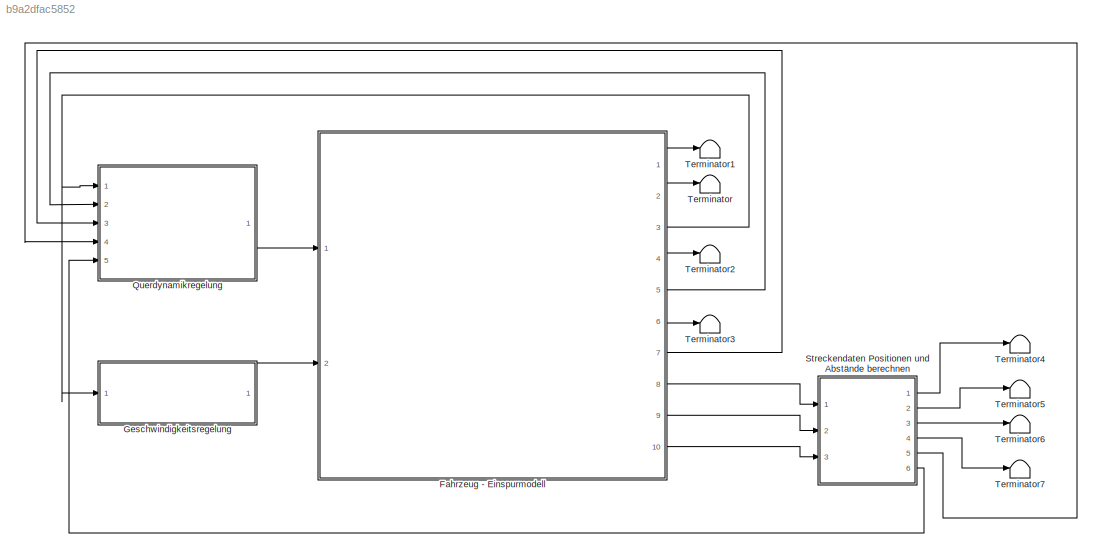
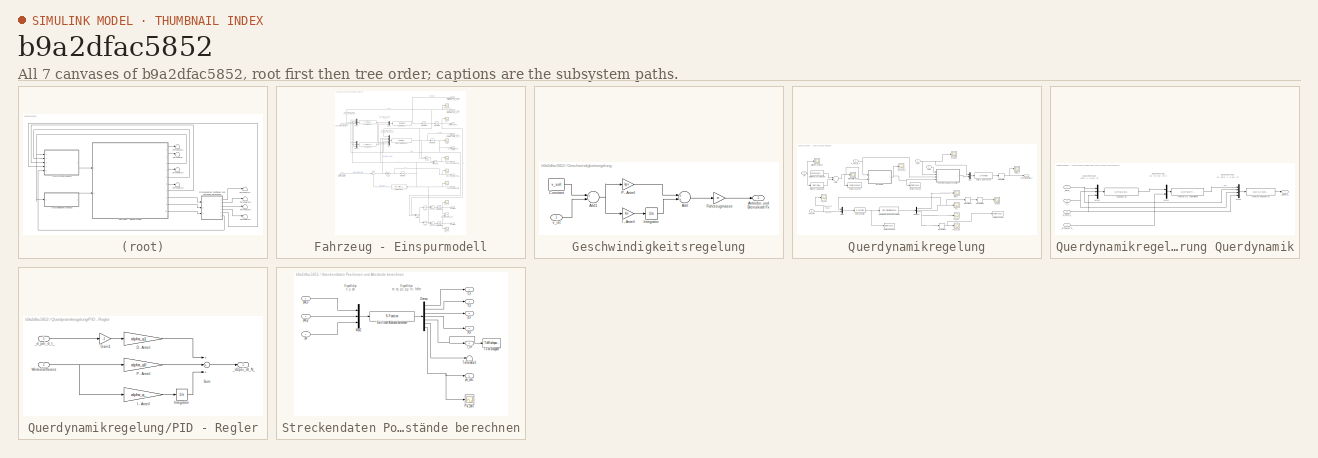
[diagram: thumbnail index - all 7 canvases of the model, root first then tree order]
MODEL slx_b9a2dfac5852
KIND model
CONFIG AbsTol = auto
CONFIG EnableMultiTasking = on
CONFIG FixedStep = 1e-2
CONFIG InitFcn = model_init_function;
CONFIG MaxStep = auto
CONFIG MinStep = auto
CONFIG PreLoadFcn = model_preload_function;\n
CONFIG RelTol = 1e-3
CONFIG SampleTimeConstraint = Unconstrained
CONFIG Solver = ode5
CONFIG SolverName = ode5
CONFIG StartTime = 0.0
CONFIG StopTime = 140.0
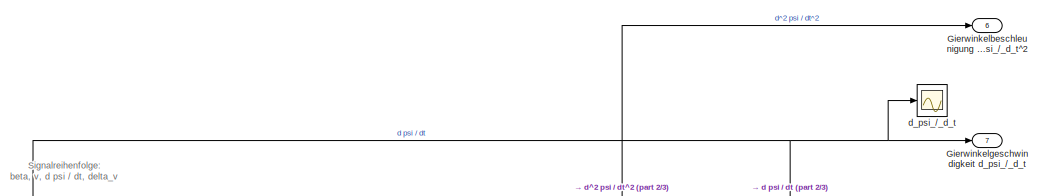
[diagram: Fahrzeug - Einspurmodell - part 1/3, full width, top band]
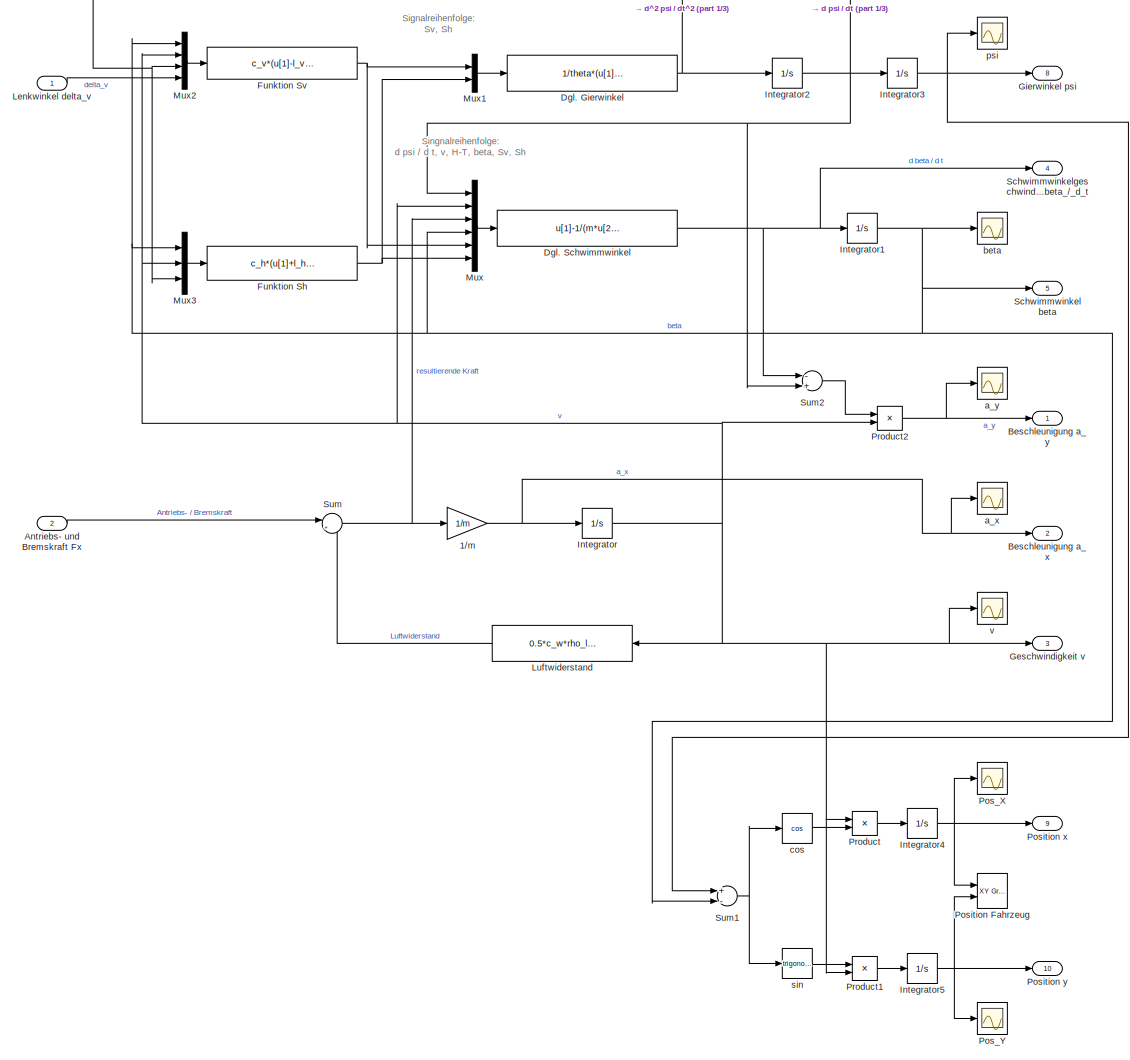
[diagram: Fahrzeug - Einspurmodell - part 2/3, most of the canvas]
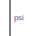
[diagram: Fahrzeug - Einspurmodell - part 3/3, middle right region]
BLOCK [SubSystem] Fahrzeug - Einspurmodell
  Ports = [2, 10]
  RequestExecContextInheritance = off
  Variant = off
BLOCK [Gain] Fahrzeug - Einspurmodell/1//m
  Gain = 1/m
BLOCK [Inport] Fahrzeug - Einspurmodell/Antriebs- und Bremskraft Fx
  IconDisplay = Port number
  Port = 2
BLOCK [Outport] Fahrzeug - Einspurmodell/Beschleunigung a_x
  IconDisplay = Port number
  Port = 2
BLOCK [Outport] Fahrzeug - Einspurmodell/Beschleunigung a_y
  IconDisplay = Port number
BLOCK [Fcn] Fahrzeug - Einspurmodell/Dgl. Gierwinkel
  Expr = 1/theta*(u[1]*l_v-u[2]*l_h)
BLOCK [Fcn] Fahrzeug - Einspurmodell/Dgl. Schwimmwinkel
  Expr = u[1]-1/(m*u[2])*(u[3]*u[4]+u[5]+u[6])
BLOCK [Fcn] Fahrzeug - Einspurmodell/Funktion Sh
  Expr = c_h*(u[1]+l_h/u[2]*u[3])
BLOCK [Fcn] Fahrzeug - Einspurmodell/Funktion Sv
  Expr = c_v*(u[1]-l_v/u[2]*u[3]+u[4])
BLOCK [Outport] Fahrzeug - Einspurmodell/Geschwindigkeit v
  IconDisplay = Port number
  Port = 3
BLOCK [Outport] Fahrzeug - Einspurmodell/Gierwinkel psi
  IconDisplay = Port number
  Port = 8
BLOCK [Outport] Fahrzeug - Einspurmodell/Gierwinkelbeschleunigung d^2_psi_//_d_t^2
  IconDisplay = Port number
  Port = 6
BLOCK [Outport] Fahrzeug - Einspurmodell/Gierwinkelgeschwindigkeit d_psi_//_d_t
  IconDisplay = Port number
  Port = 7
BLOCK [Integrator] Fahrzeug - Einspurmodell/Integrator
  InitialCondition = v_0
  Ports = [1, 1]
BLOCK [Integrator] Fahrzeug - Einspurmodell/Integrator1
  Ports = [1, 1]
BLOCK [Integrator] Fahrzeug - Einspurmodell/Integrator2
  Ports = [1, 1]
BLOCK [Integrator] Fahrzeug - Einspurmodell/Integrator3
  InitialCondition = psi_0
  Ports = [1, 1]
BLOCK [Integrator] Fahrzeug - Einspurmodell/Integrator4
  InitialCondition = x_0
  Ports = [1, 1]
BLOCK [Integrator] Fahrzeug - Einspurmodell/Integrator5
  InitialCondition = y_0
  Ports = [1, 1]
BLOCK [Inport] Fahrzeug - Einspurmodell/Lenkwinkel delta_v
  IconDisplay = Port number
BLOCK [Fcn] Fahrzeug - Einspurmodell/Luftwiderstand
  Expr = 0.5*c_w*rho_luft*A*u[1]^2
BLOCK [Mux] Fahrzeug - Einspurmodell/Mux
  DisplayOption = bar
  Inputs = 6
  Ports = [6, 1]
BLOCK [Mux] Fahrzeug - Einspurmodell/Mux1
  DisplayOption = bar
  Inputs = 2
  Ports = [2, 1]
BLOCK [Mux] Fahrzeug - Einspurmodell/Mux2
  DisplayOption = bar
  Ports = [4, 1]
BLOCK [Mux] Fahrzeug - Einspurmodell/Mux3
  DisplayOption = bar
  Inputs = 3
  Ports = [3, 1]
BLOCK [Scope] Fahrzeug - Einspurmodell/Pos_X
  NumInputPorts = 1
  Ports = [1]
  ScopeSpecificationString = C++SS(StrPVP('Open','off'),StrPVP('TimeRange','auto'),StrPVP('TickLabels','OneTimeTick'),StrPVP('ShowLegends','off'),StrPVP('LimitDataPoints','off'),StrPVP('MaxDataPoints','5000'),StrPVP('SaveToWorkspace','on'),StrPVP('SaveName','Pos_X'),StrPVP('YMin','-57.6157'),StrPVP('YMax','518.54134'),StrPVP('BlockParamSampleInput','off'),StrPVP('BlockParamSampleTime','-1'),StrPVP('ZoomMode','on'),StrPVP('Gri...<+564ch>
BLOCK [Scope] Fahrzeug - Einspurmodell/Pos_Y
  NumInputPorts = 1
  Ports = [1]
  ScopeSpecificationString = C++SS(StrPVP('Open','off'),StrPVP('TimeRange','auto'),StrPVP('TickLabels','OneTimeTick'),StrPVP('ShowLegends','off'),StrPVP('LimitDataPoints','off'),StrPVP('MaxDataPoints','5000'),StrPVP('SaveToWorkspace','on'),StrPVP('SaveName','Pos_Y'),StrPVP('YMin','-79.1723'),StrPVP('YMax','727.55068'),StrPVP('BlockParamSampleInput','off'),StrPVP('BlockParamSampleTime','-1'),StrPVP('ZoomMode','on'),StrPVP('Gri...<+564ch>
BLOCK [Reference] Fahrzeug - Einspurmodell/Position Fahrzeug  REF=simulink/Sinks/XY Graph
  Ports = [2]
  SourceBlock = simulink/Sinks/XY Graph
  SourceProductBaseCode = SL
  SourceProductName = Simulink
  SourceType = XY scope.
BLOCK [Outport] Fahrzeug - Einspurmodell/Position x
  IconDisplay = Port number
  Port = 9
BLOCK [Outport] Fahrzeug - Einspurmodell/Position y
  IconDisplay = Port number
  Port = 10
BLOCK [Product] Fahrzeug - Einspurmodell/Product
  InputSameDT = off
  Ports = [2, 1]
  RndMeth = Floor
BLOCK [Product] Fahrzeug - Einspurmodell/Product1
  InputSameDT = off
  Ports = [2, 1]
  RndMeth = Floor
BLOCK [Product] Fahrzeug - Einspurmodell/Product2
  InputSameDT = off
  Ports = [2, 1]
  RndMeth = Floor
BLOCK [Outport] Fahrzeug - Einspurmodell/Schwimmwinkel beta
  IconDisplay = Port number
  Port = 5
BLOCK [Outport] Fahrzeug - Einspurmodell/Schwimmwinkelgeschwindigkeit d_beta_//_d_t
  IconDisplay = Port number
  Port = 4
BLOCK [Sum] Fahrzeug - Einspurmodell/Sum
  IconShape = round
  InputSameDT = off
  Inputs = |+-
  OutDataTypeStr = Inherit: Inherit via internal rule
  Ports = [2, 1]
BLOCK [Sum] Fahrzeug - Einspurmodell/Sum1
  InputSameDT = off
  Inputs = +-
  OutDataTypeStr = Inherit: Inherit via internal rule
  Ports = [2, 1]
BLOCK [Sum] Fahrzeug - Einspurmodell/Sum2
  InputSameDT = off
  Inputs = -+
  OutDataTypeStr = Inherit: Inherit via internal rule
  Ports = [2, 1]
BLOCK [Scope] Fahrzeug - Einspurmodell/a_x
  NumInputPorts = 1
  Ports = [1]
  ScopeSpecificationString = C++SS(StrPVP('Open','off'),StrPVP('TimeRange','auto'),StrPVP('TickLabels','OneTimeTick'),StrPVP('ShowLegends','off'),StrPVP('LimitDataPoints','off'),StrPVP('MaxDataPoints','5000'),StrPVP('SaveToWorkspace','off'),StrPVP('SaveName','ScopeData1'),StrPVP('YMin','-0.03'),StrPVP('YMax','0.12'),StrPVP('BlockParamSampleInput','off'),StrPVP('BlockParamSampleTime','-1'),StrPVP('ZoomMode','on'),StrPVP('Grid'...<+573ch>
BLOCK [Scope] Fahrzeug - Einspurmodell/a_y
  NumInputPorts = 1
  Ports = [1]
  ScopeSpecificationString = C++SS(StrPVP('Open','off'),StrPVP('TimeRange','auto'),StrPVP('TickLabels','OneTimeTick'),StrPVP('ShowLegends','off'),StrPVP('LimitDataPoints','off'),StrPVP('MaxDataPoints','5000'),StrPVP('SaveToWorkspace','off'),StrPVP('SaveName','ScopeData4'),StrPVP('YMin','-7'),StrPVP('YMax','8'),StrPVP('BlockParamSampleInput','off'),StrPVP('BlockParamSampleTime','-1'),StrPVP('ZoomMode','on'),StrPVP('Grid','on')...<+568ch>
BLOCK [Scope] Fahrzeug - Einspurmodell/beta
  NumInputPorts = 1
  Ports = [1]
  ScopeSpecificationString = C++SS(StrPVP('Open','off'),StrPVP('TimeRange','auto'),StrPVP('TickLabels','OneTimeTick'),StrPVP('ShowLegends','off'),StrPVP('LimitDataPoints','off'),StrPVP('MaxDataPoints','5000'),StrPVP('SaveToWorkspace','off'),StrPVP('SaveName','ScopeData3'),StrPVP('YMin','-1'),StrPVP('YMax','1'),StrPVP('BlockParamSampleInput','off'),StrPVP('BlockParamSampleTime','-1'),StrPVP('ZoomMode','on'),StrPVP('Grid','on')...<+569ch>
BLOCK [Trigonometry] Fahrzeug - Einspurmodell/cos
  Operator = cos
  Ports = [1, 1]
BLOCK [Scope] Fahrzeug - Einspurmodell/d_psi_//_d_t
  NumInputPorts = 1
  Ports = [1]
  ScopeSpecificationString = C++SS(StrPVP('Open','off'),StrPVP('TimeRange','auto'),StrPVP('TickLabels','OneTimeTick'),StrPVP('ShowLegends','off'),StrPVP('LimitDataPoints','on'),StrPVP('MaxDataPoints','5000'),StrPVP('SaveToWorkspace','off'),StrPVP('SaveName','ScopeData7'),StrPVP('YMin','-10'),StrPVP('YMax','10'),StrPVP('BlockParamSampleInput','off'),StrPVP('BlockParamSampleTime','-1'),StrPVP('ZoomMode','on'),StrPVP('Grid','on'...<+557ch>
BLOCK [Scope] Fahrzeug - Einspurmodell/psi
  NumInputPorts = 1
  Ports = [1]
  ScopeSpecificationString = C++SS(StrPVP('Open','off'),StrPVP('TimeRange','auto'),StrPVP('TickLabels','OneTimeTick'),StrPVP('ShowLegends','off'),StrPVP('LimitDataPoints','off'),StrPVP('MaxDataPoints','5000'),StrPVP('SaveToWorkspace','off'),StrPVP('SaveName','ScopeData2'),StrPVP('YMin','0'),StrPVP('YMax','1.75'),StrPVP('BlockParamSampleInput','off'),StrPVP('BlockParamSampleTime','-1'),StrPVP('ZoomMode','on'),StrPVP('Grid','on...<+570ch>
BLOCK [Trigonometry] Fahrzeug - Einspurmodell/sin
  Ports = [1, 1]
BLOCK [Scope] Fahrzeug - Einspurmodell/v
  NumInputPorts = 1
  Ports = [1]
  ScopeSpecificationString = C++SS(StrPVP('Open','off'),StrPVP('TimeRange','auto'),StrPVP('TickLabels','OneTimeTick'),StrPVP('ShowLegends','off'),StrPVP('LimitDataPoints','off'),StrPVP('MaxDataPoints','5000'),StrPVP('SaveToWorkspace','off'),StrPVP('SaveName','ScopeData'),StrPVP('YMin','9'),StrPVP('YMax','25'),StrPVP('BlockParamSampleInput','off'),StrPVP('BlockParamSampleTime','-1'),StrPVP('ZoomMode','on'),StrPVP('Grid','on'),...<+568ch>
BLOCK [SubSystem] Geschwindigkeitsregelung
  Ports = [1, 1]
  RequestExecContextInheritance = off
  Variant = off
BLOCK [Sum] Geschwindigkeitsregelung/Add
  InputSameDT = off
  OutDataTypeStr = Inherit: Inherit via internal rule
  Ports = [2, 1]
  SaturateOnIntegerOverflow = off
BLOCK [Sum] Geschwindigkeitsregelung/Add1
  InputSameDT = off
  Inputs = +-
  OutDataTypeStr = Inherit: Inherit via internal rule
  Ports = [2, 1]
  SaturateOnIntegerOverflow = off
BLOCK [Outport] Geschwindigkeitsregelung/Antriebs- und Bremskraft Fx
  IconDisplay = Port number
BLOCK [Constant] Geschwindigkeitsregelung/Constant
  Value = v_soll
BLOCK [Gain] Geschwindigkeitsregelung/Fahrzeugmasse
  Gain = m
  OutDataTypeStr = Inherit: Inherit via internal rule
  ParamDataTypeStr = Inherit: Inherit via internal rule
  SaturateOnIntegerOverflow = off
BLOCK [Gain] Geschwindigkeitsregelung/I - Anteil
  Gain = kiv
  OutDataTypeStr = Inherit: Inherit via internal rule
  ParamDataTypeStr = Inherit: Inherit via internal rule
  SaturateOnIntegerOverflow = off
BLOCK [Integrator] Geschwindigkeitsregelung/Integrator
  Ports = [1, 1]
BLOCK [Gain] Geschwindigkeitsregelung/P - Anteil
  Gain = kpv
  OutDataTypeStr = Inherit: Inherit via internal rule
  ParamDataTypeStr = Inherit: Inherit via internal rule
  SaturateOnIntegerOverflow = off
BLOCK [Inport] Geschwindigkeitsregelung/v_ist
  IconDisplay = Port number
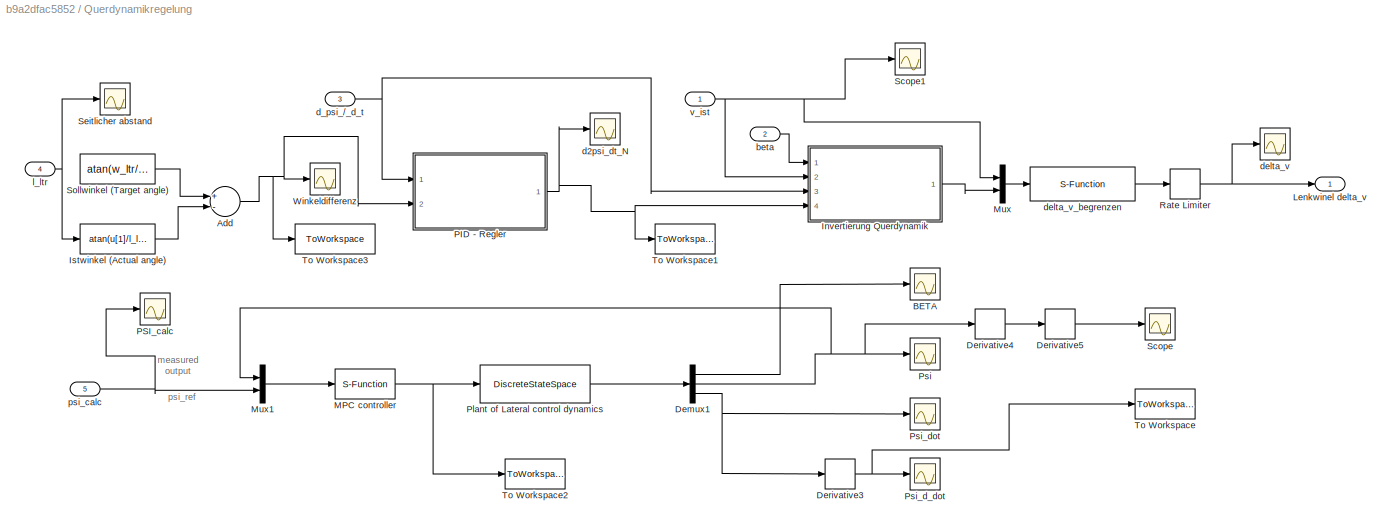
BLOCK [SubSystem] Querdynamikregelung
  Ports = [5, 1]
  RequestExecContextInheritance = off
  Variant = off
BLOCK [Sum] Querdynamikregelung/Add
  InputSameDT = off
  Inputs = +-
  OutDataTypeStr = Inherit: Inherit via internal rule
  Ports = [2, 1]
  SaturateOnIntegerOverflow = off
BLOCK [Scope] Querdynamikregelung/BETA
  Commented = on
  NumInputPorts = 1
  Ports = [1]
  ScopeSpecificationString = C++SS(StrPVP('Open','off'),StrPVP('TimeRange','auto'),StrPVP('TickLabels','OneTimeTick'),StrPVP('ShowLegends','off'),StrPVP('LimitDataPoints','off'),StrPVP('MaxDataPoints','5000'),StrPVP('SaveToWorkspace','off'),StrPVP('SaveName','ScopeData1'),StrPVP('YMin','-0.52822'),StrPVP('YMax','0.43795'),StrPVP('BlockParamSampleInput','off'),StrPVP('BlockParamSampleTime','-1'),StrPVP('ZoomMode','on'),StrPVP(...<+581ch>
BLOCK [Demux] Querdynamikregelung/Demux1
  Commented = on
  DisplayOption = bar
  Outputs = 3
  Ports = [1, 3]
BLOCK [Derivative] Querdynamikregelung/Derivative3
  Commented = on
BLOCK [Derivative] Querdynamikregelung/Derivative4
  Commented = on
BLOCK [Derivative] Querdynamikregelung/Derivative5
  Commented = on
BLOCK [SubSystem] Querdynamikregelung/Invertierung Querdynamik
  Ports = [4, 1]
  RequestExecContextInheritance = off
  Variant = off
BLOCK [Fcn] Querdynamikregelung/Invertierung Querdynamik/Funktion Sh
  Expr = c_h*(u[1]+l_h/u[2]*u[3])
BLOCK [Fcn] Querdynamikregelung/Invertierung Querdynamik/Inverse Funktion Sv
  Expr = u[1]/c_v-u[2]+l_v/u[3]*u[4]
BLOCK [Fcn] Querdynamikregelung/Invertierung Querdynamik/Inverse Gl. Gierwinkel
  Expr = 1/l_v*(u[2]*theta+u[1]*l_h)
BLOCK [Mux] Querdynamikregelung/Invertierung Querdynamik/Mux1
  DisplayOption = bar
  Inputs = 2
  Ports = [2, 1]
BLOCK [Mux] Querdynamikregelung/Invertierung Querdynamik/Mux2
  DisplayOption = bar
  Ports = [4, 1]
BLOCK [Mux] Querdynamikregelung/Invertierung Querdynamik/Mux3
  DisplayOption = bar
  Inputs = 3
  Ports = [3, 1]
BLOCK [Inport] Querdynamikregelung/Invertierung Querdynamik/_beta_
  IconDisplay = Port number
BLOCK [Inport] Querdynamikregelung/Invertierung Querdynamik/_d^2psi_dt^2_
  IconDisplay = Port number
  Port = 4
BLOCK [Inport] Querdynamikregelung/Invertierung Querdynamik/_d_psi_d_t_
  IconDisplay = Port number
  Port = 3
BLOCK [Outport] Querdynamikregelung/Invertierung Querdynamik/_delta_v_
  IconDisplay = Port number
BLOCK [Inport] Querdynamikregelung/Invertierung Querdynamik/_v_
  IconDisplay = Port number
  Port = 2
BLOCK [Fcn] Querdynamikregelung/Istwinkel (Actual angle) 
  Expr = atan(u[1]/l_l0)
BLOCK [Outport] Querdynamikregelung/Lenkwinel delta_v
  IconDisplay = Port number
BLOCK [S-Function] Querdynamikregelung/MPC controller
  Commented = on
  EnableBusSupport = off
  FunctionName = controller
  Ports = [1, 1]
  SFcnIsStateOwnerBlock = off
  SFunctionDeploymentMode = off
BLOCK [Mux] Querdynamikregelung/Mux
  DisplayOption = bar
  Inputs = 2
  Ports = [2, 1]
BLOCK [Mux] Querdynamikregelung/Mux1
  Commented = on
  DisplayOption = bar
  Inputs = 2
  Ports = [2, 1]
BLOCK [SubSystem] Querdynamikregelung/PID - Regler
  Ports = [2, 1]
  RequestExecContextInheritance = off
  Variant = off
BLOCK [Gain] Querdynamikregelung/PID - Regler/D - Anteil
  Gain = alpha_q1
BLOCK [Gain] Querdynamikregelung/PID - Regler/Gain1
  Gain = -1
BLOCK [Gain] Querdynamikregelung/PID - Regler/I - Anteil
  Gain = alpha_q_
BLOCK [Integrator] Querdynamikregelung/PID - Regler/Integrator
  Ports = [1, 1]
BLOCK [Gain] Querdynamikregelung/PID - Regler/P - Anteil
  Gain = alpha_q0
BLOCK [Sum] Querdynamikregelung/PID - Regler/Sum
  InputSameDT = off
  Inputs = +++
  OutDataTypeStr = Inherit: Inherit via internal rule
  Ports = [3, 1]
BLOCK [Inport] Querdynamikregelung/PID - Regler/Winkeldifferenz
  IconDisplay = Port number
  Port = 2
BLOCK [Outport] Querdynamikregelung/PID - Regler/_d2psi_dt_N_
  IconDisplay = Port number
BLOCK [Inport] Querdynamikregelung/PID - Regler/_d_psi_d_t_
  IconDisplay = Port number
BLOCK [Scope] Querdynamikregelung/PSI_calc
  Commented = on
  NumInputPorts = 1
  Ports = [1]
  ScopeSpecificationString = Simulink.scopes.TimeScopeBlockCfg('CurrentConfiguration', extmgr.ConfigurationSet(extmgr.Configuration('Core','General UI',true,'FigureColor',[0.156862745098039 0.156862745098039 0.156862745098039]),extmgr.Configuration('Core','Source UI',true),extmgr.Configuration('Sources','WiredSimulink',true,'DataLoggingVariableName','ScopeData3','DataLoggingSaveFormat','StructureWithTime','DataLoggingDecimati...<+2766ch>
BLOCK [DiscreteStateSpace] Querdynamikregelung/Plant of Lateral control dynamics
  A = Ap
  B = Bp
  C = Cp
  Commented = on
  D = Dp
  SampleTime = -1
BLOCK [Scope] Querdynamikregelung/Psi
  Commented = on
  NumInputPorts = 1
  Ports = [1]
  ScopeSpecificationString = Simulink.scopes.TimeScopeBlockCfg('CurrentConfiguration', extmgr.ConfigurationSet(extmgr.Configuration('Core','General UI',true,'FigureColor',[0.156862745098039 0.156862745098039 0.156862745098039]),extmgr.Configuration('Core','Source UI',true),extmgr.Configuration('Sources','WiredSimulink',true,'DataLoggingVariableName','ScopeData2','DataLoggingSaveFormat','StructureWithTime','DataLoggingDecimati...<+2757ch>
BLOCK [Scope] Querdynamikregelung/Psi_d_dot
  Commented = on
  NumInputPorts = 1
  Ports = [1]
  ScopeSpecificationString = Simulink.scopes.TimeScopeBlockCfg('CurrentConfiguration', extmgr.ConfigurationSet(extmgr.Configuration('Core','General UI',true,'FigureColor',[0.156862745098039 0.156862745098039 0.156862745098039]),extmgr.Configuration('Core','Source UI',true),extmgr.Configuration('Sources','WiredSimulink',true,'DataLoggingVariableName','ScopeData4','DataLoggingSaveFormat','StructureWithTime','DataLoggingDecimati...<+2782ch>
BLOCK [Scope] Querdynamikregelung/Psi_dot
  Commented = on
  NumInputPorts = 1
  Ports = [1]
  ScopeSpecificationString = Simulink.scopes.TimeScopeBlockCfg('CurrentConfiguration', extmgr.ConfigurationSet(extmgr.Configuration('Core','General UI',true,'FigureColor',[0.156862745098039 0.156862745098039 0.156862745098039]),extmgr.Configuration('Core','Source UI',true),extmgr.Configuration('Sources','WiredSimulink',true,'DataLoggingVariableName','ScopeData3','DataLoggingSaveFormat','StructureWithTime','DataLoggingDecimati...<+2757ch>
BLOCK [RateLimiter] Querdynamikregelung/Rate Limiter
  FallingSlewLimit = -0.5
  RisingSlewLimit = 0.5
BLOCK [Scope] Querdynamikregelung/Scope
  Commented = on
  NumInputPorts = 1
  Ports = [1]
  ScopeSpecificationString = Simulink.scopes.TimeScopeBlockCfg('CurrentConfiguration', extmgr.ConfigurationSet(extmgr.Configuration('Core','General UI',true,'FigureColor',[0.156862745098039 0.156862745098039 0.156862745098039]),extmgr.Configuration('Core','Source UI',true),extmgr.Configuration('Sources','WiredSimulink',true,'DataLoggingVariableName','ScopeData1','DataLoggingSaveFormat','StructureWithTime','DataLoggingDecimati...<+2789ch>
BLOCK [Scope] Querdynamikregelung/Scope1
  NumInputPorts = 1
  Ports = [1]
  ScopeSpecificationString = C++SS(StrPVP('Open','off'),StrPVP('TimeRange','auto'),StrPVP('TickLabels','OneTimeTick'),StrPVP('ShowLegends','off'),StrPVP('LimitDataPoints','off'),StrPVP('MaxDataPoints','5000'),StrPVP('SaveToWorkspace','off'),StrPVP('SaveName','ScopeData1'),StrPVP('YMin','9.99524'),StrPVP('YMax','10.00053'),StrPVP('BlockParamSampleInput','off'),StrPVP('BlockParamSampleTime','-1'),StrPVP('ZoomMode','on'),StrPVP(...<+581ch>
BLOCK [Scope] Querdynamikregelung/Seitlicher abstand
  NumInputPorts = 1
  Ports = [1]
  ScopeSpecificationString = Simulink.scopes.TimeScopeBlockCfg('CurrentConfiguration', extmgr.ConfigurationSet(extmgr.Configuration('Core','General UI',true),extmgr.Configuration('Core','Source UI',true),extmgr.Configuration('Sources','WiredSimulink',true,'DataLoggingVariableName','ScopeData1'),extmgr.Configuration('Visuals','Time Domain',true,'SerializedDisplays',{struct('MinYLimReal','-0.32682','MaxYLimReal','0.14123','YLab...<+1397ch>
BLOCK [Constant] Querdynamikregelung/Sollwinkel (Target angle)
  Value = atan(w_ltr/l_l0)
BLOCK [ToWorkspace] Querdynamikregelung/To Workspace
  Commented = on
  FixptAsFi = on
  MaxDataPoints = inf
  Ports = [1]
  SampleTime = -1
  Save2DSignal = 3-D array (concatenate along third dimension)
  SaveFormat = Structure With Time
  VariableName = psi_ddot
BLOCK [ToWorkspace] Querdynamikregelung/To Workspace1
  FixptAsFi = on
  MaxDataPoints = inf
  Ports = [1]
  SampleTime = -1
  Save2DSignal = 3-D array (concatenate along third dimension)
  SaveFormat = Structure With Time
  VariableName = psi_ddot_PID
BLOCK [ToWorkspace] Querdynamikregelung/To Workspace2
  Commented = on
  FixptAsFi = on
  MaxDataPoints = inf
  Ports = [1]
  SampleTime = -1
  SaveFormat = Structure With Time
  VariableName = delta_v_MPC
BLOCK [ToWorkspace] Querdynamikregelung/To Workspace3
  FixptAsFi = on
  MaxDataPoints = inf
  Ports = [1]
  SampleTime = -1
  Save2DSignal = 3-D array (concatenate along third dimension)
  SaveFormat = Structure With Time
  VariableName = Angle_Difference
BLOCK [Scope] Querdynamikregelung/Winkeldifferenz
  NumInputPorts = 1
  Ports = [1]
  ScopeSpecificationString = Simulink.scopes.TimeScopeBlockCfg('CurrentConfiguration', extmgr.ConfigurationSet(extmgr.Configuration('Core','General UI',true,'FigureColor',[0.156862745098039 0.156862745098039 0.156862745098039]),extmgr.Configuration('Core','Source UI',true),extmgr.Configuration('Sources','WiredSimulink',true,'DataLoggingVariableName','ScopeData8','DataLoggingSaveFormat','StructureWithTime','DataLoggingDecimati...<+2778ch>
BLOCK [Inport] Querdynamikregelung/beta
  IconDisplay = Port number
  Port = 2
BLOCK [Scope] Querdynamikregelung/d2psi_dt_N
  NumInputPorts = 1
  Ports = [1]
  ScopeSpecificationString = C++SS(StrPVP('Open','off'),StrPVP('TimeRange','auto'),StrPVP('TickLabels','OneTimeTick'),StrPVP('ShowLegends','off'),StrPVP('LimitDataPoints','off'),StrPVP('MaxDataPoints','5000'),StrPVP('SaveToWorkspace','off'),StrPVP('SaveName','ScopeData5'),StrPVP('YMin','-0.08328'),StrPVP('YMax','0.07934'),StrPVP('BlockParamSampleInput','off'),StrPVP('BlockParamSampleTime','-1'),StrPVP('ZoomMode','on'),StrPVP(...<+589ch>
BLOCK [Inport] Querdynamikregelung/d_psi_//_d_t
  IconDisplay = Port number
  Port = 3
BLOCK [Scope] Querdynamikregelung/delta_v
  NumInputPorts = 1
  Ports = [1]
  ScopeSpecificationString = C++SS(StrPVP('Open','off'),StrPVP('TimeRange','auto'),StrPVP('TickLabels','OneTimeTick'),StrPVP('ShowLegends','off'),StrPVP('LimitDataPoints','off'),StrPVP('MaxDataPoints','5000'),StrPVP('SaveToWorkspace','off'),StrPVP('SaveName','ScopeData6'),StrPVP('YMin','-0.05809'),StrPVP('YMax','0.04964'),StrPVP('BlockParamSampleInput','off'),StrPVP('BlockParamSampleTime','-1'),StrPVP('ZoomMode','on'),StrPVP(...<+596ch>
BLOCK [S-Function] Querdynamikregelung/delta_v_begrenzen
  EnableBusSupport = off
  FunctionName = delta_v_begrenzen
  Ports = [1, 1]
  SFcnIsStateOwnerBlock = off
  SFunctionDeploymentMode = off
BLOCK [Inport] Querdynamikregelung/l_ltr
  IconDisplay = Port number
  Port = 4
BLOCK [Inport] Querdynamikregelung/psi_calc
  IconDisplay = Port number
  Port = 5
BLOCK [Inport] Querdynamikregelung/v_ist
  IconDisplay = Port number
BLOCK [SubSystem] Streckendaten Positionen und Abstände berechnen
  Ports = [3, 6]
  RequestExecContextInheritance = off
  Variant = off
BLOCK [Demux] Streckendaten Positionen und Abstände berechnen/Demux
  Outputs = 7
  Ports = [1, 7]
BLOCK [Mux] Streckendaten Positionen und Abstände berechnen/Mux2
  DisplayOption = bar
  Inputs = 3
  Ports = [3, 1]
BLOCK [Scope] Streckendaten Positionen und Abstände berechnen/Psi_calc
  NumInputPorts = 1
  Ports = [1]
  ScopeSpecificationString = C++SS(StrPVP('Open','off'),StrPVP('TimeRange','auto'),StrPVP('TickLabels','OneTimeTick'),StrPVP('ShowLegends','off'),StrPVP('LimitDataPoints','off'),StrPVP('MaxDataPoints','5000'),StrPVP('SaveToWorkspace','off'),StrPVP('SaveName','ScopeData2'),StrPVP('YMin','-10'),StrPVP('YMax','10'),StrPVP('BlockParamSampleInput','off'),StrPVP('BlockParamSampleTime','-1'),StrPVP('ZoomMode','on'),StrPVP('Grid','on...<+571ch>
BLOCK [S-Function] Streckendaten Positionen und Abstände berechnen/Seitlichen Abstand berechnen
  EnableBusSupport = off
  FunctionName = seitlichen_abstand_berechnen
  Ports = [1, 1]
  SFcnIsStateOwnerBlock = off
  SFunctionDeploymentMode = off
BLOCK [Terminator] Streckendaten Positionen und Abstände berechnen/Terminator3
BLOCK [ToWorkspace] Streckendaten Positionen und Abstände berechnen/To Workspace
  FixptAsFi = on
  MaxDataPoints = inf
  Ports = [1]
  SampleTime = -1
  Save2DSignal = 3-D array (concatenate along third dimension)
  SaveFormat = Structure With Time
  VariableName = lateral_gap
BLOCK [Outport] Streckendaten Positionen und Abstände berechnen/e_x
  IconDisplay = Port number
BLOCK [Outport] Streckendaten Positionen und Abstände berechnen/e_y
  IconDisplay = Port number
  Port = 2
BLOCK [Outport] Streckendaten Positionen und Abstände berechnen/l_ltr
  IconDisplay = Port number
  Port = 5
BLOCK [Outport] Streckendaten Positionen und Abstände berechnen/p_x
  IconDisplay = Port number
  Port = 3
BLOCK [Outport] Streckendaten Positionen und Abstände berechnen/p_y
  IconDisplay = Port number
  Port = 4
BLOCK [Inport] Streckendaten Positionen und Abstände berechnen/pos_x
  IconDisplay = Port number
  Port = 2
BLOCK [Inport] Streckendaten Positionen und Abstände berechnen/pos_y
  IconDisplay = Port number
  Port = 3
BLOCK [Inport] Streckendaten Positionen und Abstände berechnen/psi
  IconDisplay = Port number
BLOCK [Outport] Streckendaten Positionen und Abstände berechnen/psi_calc
  IconDisplay = Port number
  Port = 6
BLOCK [Terminator] Terminator
BLOCK [Terminator] Terminator1
BLOCK [Terminator] Terminator2
BLOCK [Terminator] Terminator3
BLOCK [Terminator] Terminator4
BLOCK [Terminator] Terminator5
BLOCK [Terminator] Terminator6
BLOCK [Terminator] Terminator7
ANNOTATION Fahrzeug - Einspurmodell: Signalreihenfolge: Sv, Sh
ANNOTATION Fahrzeug - Einspurmodell: Signalreihenfolge: beta, v, d psi / dt, delta_v
ANNOTATION Fahrzeug - Einspurmodell: Singnalreihenfolge: d psi / d t, v, H-T, beta, Sv, Sh
ANNOTATION Querdynamikregelung: measured output
ANNOTATION Querdynamikregelung: psi_ref
ANNOTATION Querdynamikregelung/Invertierung Querdynamik: Signalreihenfolge: Sh, d^2 psi / dt^2
ANNOTATION Querdynamikregelung/Invertierung Querdynamik: Signalreihenfolge: Sv, beta, v, d psi / dt
ANNOTATION Querdynamikregelung/Invertierung Querdynamik: Signalreihenfolge: beta, v, d psi / dt
ANNOTATION Streckendaten Positionen und Abstände berechnen: Signalfolge: ex, ey, p_x, p_y, ltr, fehler
ANNOTATION Streckendaten Positionen und Abstände berechnen: Signalfolge: x, y, psi
NET Fahrzeug - Einspurmodell/1//m:1 -> Fahrzeug - Einspurmodell/Beschleunigung a_x:1, Fahrzeug - Einspurmodell/Integrator:1, Fahrzeug - Einspurmodell/a_x:1
LINE Fahrzeug - Einspurmodell/Antriebs- und Bremskraft Fx:1 -> Fahrzeug - Einspurmodell/Sum:1
NET Fahrzeug - Einspurmodell/Dgl. Gierwinkel:1 -> Fahrzeug - Einspurmodell/Gierwinkelbeschleunigung d^2_psi_//_d_t^2:1, Fahrzeug - Einspurmodell/Integrator2:1
NET Fahrzeug - Einspurmodell/Dgl. Schwimmwinkel:1 -> Fahrzeug - Einspurmodell/Integrator1:1, Fahrzeug - Einspurmodell/Schwimmwinkelgeschwindigkeit d_beta_//_d_t:1, Fahrzeug - Einspurmodell/Sum2:1
NET Fahrzeug - Einspurmodell/Funktion Sh:1 -> Fahrzeug - Einspurmodell/Mux1:2, Fahrzeug - Einspurmodell/Mux:6
NET Fahrzeug - Einspurmodell/Funktion Sv:1 -> Fahrzeug - Einspurmodell/Mux1:1, Fahrzeug - Einspurmodell/Mux:5
NET Fahrzeug - Einspurmodell/Integrator1:1 -> Fahrzeug - Einspurmodell/Mux2:1, Fahrzeug - Einspurmodell/Mux3:1, Fahrzeug - Einspurmodell/Mux:4, Fahrzeug - Einspurmodell/Schwimmwinkel beta:1, Fahrzeug - Einspurmodell/Sum1:2, Fahrzeug - Einspurmodell/beta:1
NET Fahrzeug - Einspurmodell/Integrator2:1 -> Fahrzeug - Einspurmodell/Gierwinkelgeschwindigkeit d_psi_//_d_t:1, Fahrzeug - Einspurmodell/Integrator3:1, Fahrzeug - Einspurmodell/Mux2:3, Fahrzeug - Einspurmodell/Mux3:3, Fahrzeug - Einspurmodell/Mux:1, Fahrzeug - Einspurmodell/Sum2:2, Fahrzeug - Einspurmodell/d_psi_//_d_t:1
NET Fahrzeug - Einspurmodell/Integrator3:1 -> Fahrzeug - Einspurmodell/Gierwinkel psi:1, Fahrzeug - Einspurmodell/Sum1:1, Fahrzeug - Einspurmodell/psi:1
NET Fahrzeug - Einspurmodell/Integrator4:1 -> Fahrzeug - Einspurmodell/Pos_X:1, Fahrzeug - Einspurmodell/Position Fahrzeug:1, Fahrzeug - Einspurmodell/Position x:1
NET Fahrzeug - Einspurmodell/Integrator5:1 -> Fahrzeug - Einspurmodell/Pos_Y:1, Fahrzeug - Einspurmodell/Position Fahrzeug:2, Fahrzeug - Einspurmodell/Position y:1
NET Fahrzeug - Einspurmodell/Integrator:1 -> Fahrzeug - Einspurmodell/Geschwindigkeit v:1, Fahrzeug - Einspurmodell/Luftwiderstand:1, Fahrzeug - Einspurmodell/Mux2:2, Fahrzeug - Einspurmodell/Mux3:2, Fahrzeug - Einspurmodell/Mux:2, Fahrzeug - Einspurmodell/Product1:2, Fahrzeug - Einspurmodell/Product2:2, Fahrzeug - Einspurmodell/Product:1, Fahrzeug - Einspurmodell/v:1
LINE Fahrzeug - Einspurmodell/Lenkwinkel delta_v:1 -> Fahrzeug - Einspurmodell/Mux2:4
LINE Fahrzeug - Einspurmodell/Luftwiderstand:1 -> Fahrzeug - Einspurmodell/Sum:2
LINE Fahrzeug - Einspurmodell/Mux1:1 -> Fahrzeug - Einspurmodell/Dgl. Gierwinkel:1
LINE Fahrzeug - Einspurmodell/Mux2:1 -> Fahrzeug - Einspurmodell/Funktion Sv:1
LINE Fahrzeug - Einspurmodell/Mux3:1 -> Fahrzeug - Einspurmodell/Funktion Sh:1
LINE Fahrzeug - Einspurmodell/Mux:1 -> Fahrzeug - Einspurmodell/Dgl. Schwimmwinkel:1
LINE Fahrzeug - Einspurmodell/Product1:1 -> Fahrzeug - Einspurmodell/Integrator5:1
NET Fahrzeug - Einspurmodell/Product2:1 -> Fahrzeug - Einspurmodell/Beschleunigung a_y:1, Fahrzeug - Einspurmodell/a_y:1
LINE Fahrzeug - Einspurmodell/Product:1 -> Fahrzeug - Einspurmodell/Integrator4:1
NET Fahrzeug - Einspurmodell/Sum1:1 -> Fahrzeug - Einspurmodell/cos:1, Fahrzeug - Einspurmodell/sin:1
LINE Fahrzeug - Einspurmodell/Sum2:1 -> Fahrzeug - Einspurmodell/Product2:1
NET Fahrzeug - Einspurmodell/Sum:1 -> Fahrzeug - Einspurmodell/1//m:1, Fahrzeug - Einspurmodell/Mux:3
LINE Fahrzeug - Einspurmodell/cos:1 -> Fahrzeug - Einspurmodell/Product:2
LINE Fahrzeug - Einspurmodell/sin:1 -> Fahrzeug - Einspurmodell/Product1:1
LINE Fahrzeug - Einspurmodell:1 -> Terminator1:1
LINE Fahrzeug - Einspurmodell:10 -> Streckendaten Positionen und Abstände berechnen:3
LINE Fahrzeug - Einspurmodell:2 -> Terminator:1
NET Fahrzeug - Einspurmodell:3 -> Geschwindigkeitsregelung:1, Querdynamikregelung:1
LINE Fahrzeug - Einspurmodell:4 -> Terminator2:1
LINE Fahrzeug - Einspurmodell:5 -> Querdynamikregelung:2
LINE Fahrzeug - Einspurmodell:6 -> Terminator3:1
LINE Fahrzeug - Einspurmodell:7 -> Querdynamikregelung:3
LINE Fahrzeug - Einspurmodell:8 -> Streckendaten Positionen und Abstände berechnen:1
LINE Fahrzeug - Einspurmodell:9 -> Streckendaten Positionen und Abstände berechnen:2
NET Geschwindigkeitsregelung/Add1:1 -> Geschwindigkeitsregelung/I - Anteil:1, Geschwindigkeitsregelung/P - Anteil:1
LINE Geschwindigkeitsregelung/Add:1 -> Geschwindigkeitsregelung/Fahrzeugmasse:1
LINE Geschwindigkeitsregelung/Constant:1 -> Geschwindigkeitsregelung/Add1:1
LINE Geschwindigkeitsregelung/Fahrzeugmasse:1 -> Geschwindigkeitsregelung/Antriebs- und Bremskraft Fx:1
LINE Geschwindigkeitsregelung/I - Anteil:1 -> Geschwindigkeitsregelung/Integrator:1
LINE Geschwindigkeitsregelung/Integrator:1 -> Geschwindigkeitsregelung/Add:2
LINE Geschwindigkeitsregelung/P - Anteil:1 -> Geschwindigkeitsregelung/Add:1
LINE Geschwindigkeitsregelung/v_ist:1 -> Geschwindigkeitsregelung/Add1:2
LINE Geschwindigkeitsregelung:1 -> Fahrzeug - Einspurmodell:2
NET Querdynamikregelung/Add:1 -> Querdynamikregelung/PID - Regler:2, Querdynamikregelung/To Workspace3:1, Querdynamikregelung/Winkeldifferenz:1
LINE Querdynamikregelung/Demux1:1 -> Querdynamikregelung/BETA:1
NET Querdynamikregelung/Demux1:2 -> Querdynamikregelung/Derivative4:1, Querdynamikregelung/Mux1:1, Querdynamikregelung/Psi:1
NET Querdynamikregelung/Demux1:3 -> Querdynamikregelung/Derivative3:1, Querdynamikregelung/Psi_dot:1
NET Querdynamikregelung/Derivative3:1 -> Querdynamikregelung/Psi_d_dot:1, Querdynamikregelung/To Workspace:1
LINE Querdynamikregelung/Derivative4:1 -> Querdynamikregelung/Derivative5:1
LINE Querdynamikregelung/Derivative5:1 -> Querdynamikregelung/Scope:1
LINE Querdynamikregelung/Invertierung Querdynamik/Funktion Sh:1 -> Querdynamikregelung/Invertierung Querdynamik/Mux1:1
LINE Querdynamikregelung/Invertierung Querdynamik/Inverse Funktion Sv:1 -> Querdynamikregelung/Invertierung Querdynamik/_delta_v_:1
LINE Querdynamikregelung/Invertierung Querdynamik/Inverse Gl. Gierwinkel:1 -> Querdynamikregelung/Invertierung Querdynamik/Mux2:1
LINE Querdynamikregelung/Invertierung Querdynamik/Mux1:1 -> Querdynamikregelung/Invertierung Querdynamik/Inverse Gl. Gierwinkel:1
LINE Querdynamikregelung/Invertierung Querdynamik/Mux2:1 -> Querdynamikregelung/Invertierung Querdynamik/Inverse Funktion Sv:1
LINE Querdynamikregelung/Invertierung Querdynamik/Mux3:1 -> Querdynamikregelung/Invertierung Querdynamik/Funktion Sh:1
NET Querdynamikregelung/Invertierung Querdynamik/_beta_:1 -> Querdynamikregelung/Invertierung Querdynamik/Mux2:2, Querdynamikregelung/Invertierung Querdynamik/Mux3:1
LINE Querdynamikregelung/Invertierung Querdynamik/_d^2psi_dt^2_:1 -> Querdynamikregelung/Invertierung Querdynamik/Mux1:2
NET Querdynamikregelung/Invertierung Querdynamik/_d_psi_d_t_:1 -> Querdynamikregelung/Invertierung Querdynamik/Mux2:4, Querdynamikregelung/Invertierung Querdynamik/Mux3:3
NET Querdynamikregelung/Invertierung Querdynamik/_v_:1 -> Querdynamikregelung/Invertierung Querdynamik/Mux2:3, Querdynamikregelung/Invertierung Querdynamik/Mux3:2
LINE Querdynamikregelung/Invertierung Querdynamik:1 -> Querdynamikregelung/Mux:2
LINE Querdynamikregelung/Istwinkel (Actual angle) :1 -> Querdynamikregelung/Add:2
NET Querdynamikregelung/MPC controller:1 -> Querdynamikregelung/Plant of Lateral control dynamics:1, Querdynamikregelung/To Workspace2:1
LINE Querdynamikregelung/Mux1:1 -> Querdynamikregelung/MPC controller:1
LINE Querdynamikregelung/Mux:1 -> Querdynamikregelung/delta_v_begrenzen:1
LINE Querdynamikregelung/PID - Regler/D - Anteil:1 -> Querdynamikregelung/PID - Regler/Sum:1
LINE Querdynamikregelung/PID - Regler/Gain1:1 -> Querdynamikregelung/PID - Regler/D - Anteil:1
LINE Querdynamikregelung/PID - Regler/I - Anteil:1 -> Querdynamikregelung/PID - Regler/Integrator:1
LINE Querdynamikregelung/PID - Regler/Integrator:1 -> Querdynamikregelung/PID - Regler/Sum:3
LINE Querdynamikregelung/PID - Regler/P - Anteil:1 -> Querdynamikregelung/PID - Regler/Sum:2
LINE Querdynamikregelung/PID - Regler/Sum:1 -> Querdynamikregelung/PID - Regler/_d2psi_dt_N_:1
NET Querdynamikregelung/PID - Regler/Winkeldifferenz:1 -> Querdynamikregelung/PID - Regler/I - Anteil:1, Querdynamikregelung/PID - Regler/P - Anteil:1
LINE Querdynamikregelung/PID - Regler/_d_psi_d_t_:1 -> Querdynamikregelung/PID - Regler/Gain1:1
NET Querdynamikregelung/PID - Regler:1 -> Querdynamikregelung/Invertierung Querdynamik:4, Querdynamikregelung/To Workspace1:1, Querdynamikregelung/d2psi_dt_N:1
LINE Querdynamikregelung/Plant of Lateral control dynamics:1 -> Querdynamikregelung/Demux1:1
NET Querdynamikregelung/Rate Limiter:1 -> Querdynamikregelung/Lenkwinel delta_v:1, Querdynamikregelung/delta_v:1
LINE Querdynamikregelung/Sollwinkel (Target angle):1 -> Querdynamikregelung/Add:1
LINE Querdynamikregelung/beta:1 -> Querdynamikregelung/Invertierung Querdynamik:1
NET Querdynamikregelung/d_psi_//_d_t:1 -> Querdynamikregelung/Invertierung Querdynamik:3, Querdynamikregelung/PID - Regler:1
LINE Querdynamikregelung/delta_v_begrenzen:1 -> Querdynamikregelung/Rate Limiter:1
NET Querdynamikregelung/l_ltr:1 -> Querdynamikregelung/Istwinkel (Actual angle) :1, Querdynamikregelung/Seitlicher abstand:1
NET Querdynamikregelung/psi_calc:1 -> Querdynamikregelung/Mux1:2, Querdynamikregelung/PSI_calc:1
NET Querdynamikregelung/v_ist:1 -> Querdynamikregelung/Invertierung Querdynamik:2, Querdynamikregelung/Mux:1, Querdynamikregelung/Scope1:1
LINE Querdynamikregelung:1 -> Fahrzeug - Einspurmodell:1
LINE Streckendaten Positionen und Abstände berechnen/Demux:1 -> Streckendaten Positionen und Abstände berechnen/e_x:1
LINE Streckendaten Positionen und Abstände berechnen/Demux:2 -> Streckendaten Positionen und Abstände berechnen/e_y:1
LINE Streckendaten Positionen und Abstände berechnen/Demux:3 -> Streckendaten Positionen und Abstände berechnen/p_x:1
LINE Streckendaten Positionen und Abstände berechnen/Demux:4 -> Streckendaten Positionen und Abstände berechnen/p_y:1
NET Streckendaten Positionen und Abstände berechnen/Demux:5 -> Streckendaten Positionen und Abstände berechnen/To Workspace:1, Streckendaten Positionen und Abstände berechnen/l_ltr:1
LINE Streckendaten Positionen und Abstände berechnen/Demux:6 -> Streckendaten Positionen und Abstände berechnen/Terminator3:1
NET Streckendaten Positionen und Abstände berechnen/Demux:7 -> Streckendaten Positionen und Abstände berechnen/Psi_calc:1, Streckendaten Positionen und Abstände berechnen/psi_calc:1
LINE Streckendaten Positionen und Abstände berechnen/Mux2:1 -> Streckendaten Positionen und Abstände berechnen/Seitlichen Abstand berechnen:1
LINE Streckendaten Positionen und Abstände berechnen/Seitlichen Abstand berechnen:1 -> Streckendaten Positionen und Abstände berechnen/Demux:1
LINE Streckendaten Positionen und Abstände berechnen/pos_x:1 -> Streckendaten Positionen und Abstände berechnen/Mux2:1
LINE Streckendaten Positionen und Abstände berechnen/pos_y:1 -> Streckendaten Positionen und Abstände berechnen/Mux2:2
LINE Streckendaten Positionen und Abstände berechnen/psi:1 -> Streckendaten Positionen und Abstände berechnen/Mux2:3
LINE Streckendaten Positionen und Abstände berechnen:1 -> Terminator4:1
LINE Streckendaten Positionen und Abstände berechnen:2 -> Terminator5:1
LINE Streckendaten Positionen und Abstände berechnen:3 -> Terminator6:1
LINE Streckendaten Positionen und Abstände berechnen:4 -> Terminator7:1
LINE Streckendaten Positionen und Abstände berechnen:5 -> Querdynamikregelung:4
LINE Streckendaten Positionen und Abstände berechnen:6 -> Querdynamikregelung:5
note: NET lines group one-source signal fan-out (src -> all destinations, sorted); 1:1 wires keep LINE
